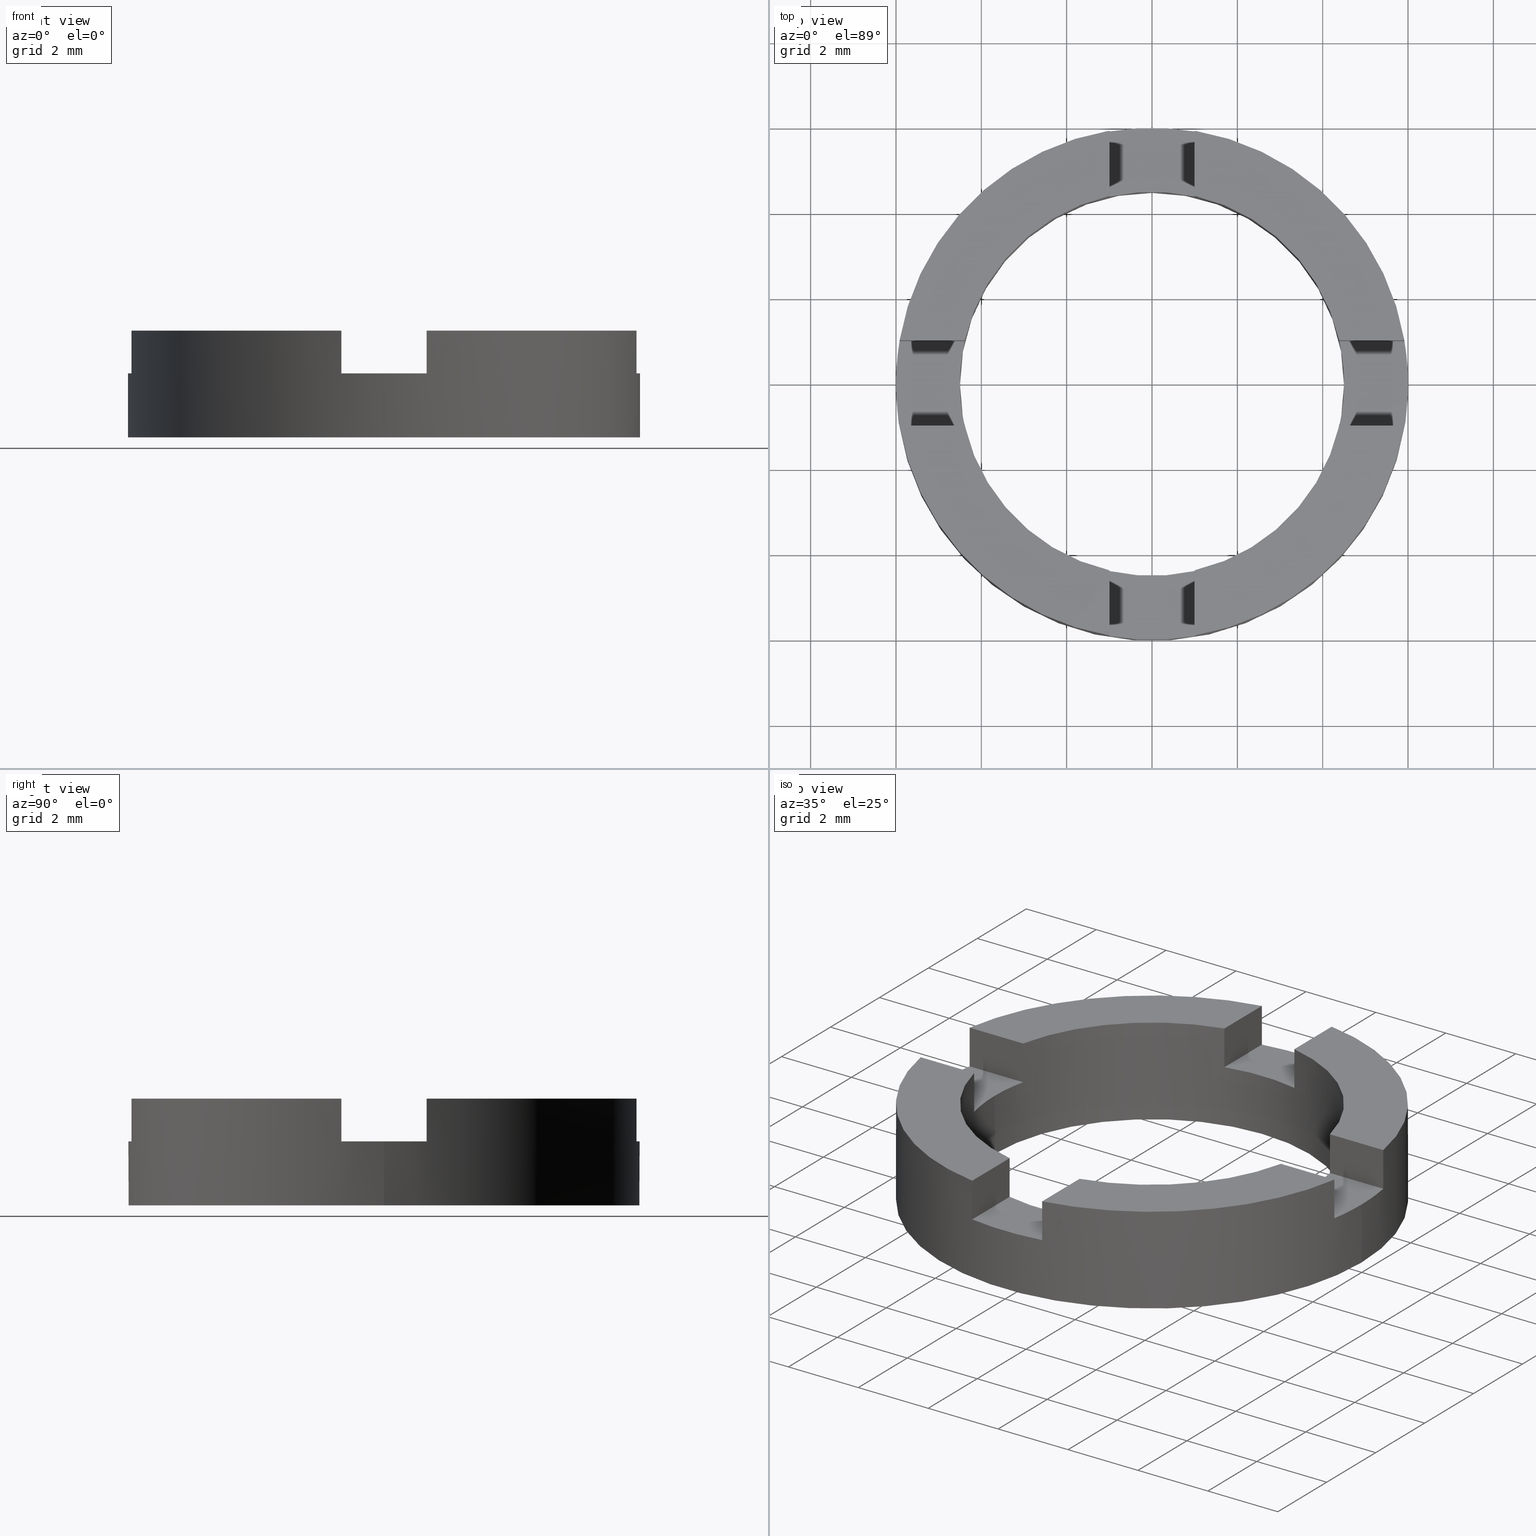
[diagram: canonical four-view strip — front | top / right | iso, engineering-drawing reading convention]
A machine part, canonical four-view strip (front | top / right | iso — engineering-drawing reading convention). The complete STEP part file that produces these views, byte-faithful:
ISO-10303-21;
HEADER;
FILE_DESCRIPTION (( 'STEP AP203' ),
    '1' );
FILE_NAME ('514030.step',
    '2024-12-26T02:30:51',
    ( 'MSI' ),
    ( '' ),
    'SwSTEP 2.0',
    'SolidWorks 2020',
    '' );
FILE_SCHEMA (( 'CONFIG_CONTROL_DESIGN' ));
ENDSEC;

DATA;
#1 = SECURITY_CLASSIFICATION_LEVEL ( 'unclassified' ) ;
#2 = LINE ( 'NONE', #461, #542 ) ;
#3 = ORIENTED_EDGE ( 'NONE', *, *, #92, .F. ) ;
#4 = LINE ( 'NONE', #417, #275 ) ;
#5 = VERTEX_POINT ( 'NONE', #466 ) ;
#6 = DATE_AND_TIME ( #501, #239 ) ;
#7 = CARTESIAN_POINT ( 'NONE',  ( -4.500000000000000000, 0.000000000000000000, 1.500000000000000000 ) ) ;
#8 = VECTOR ( 'NONE', #455, 1000.000000000000000 ) ;
#9 = ORIENTED_EDGE ( 'NONE', *, *, #32, .T. ) ;
#10 = FACE_OUTER_BOUND ( 'NONE', #345, .T. ) ;
#11 = ORIENTED_EDGE ( 'NONE', *, *, #303, .T. ) ;
#12 = LOCAL_TIME ( 10, 30, 51.00000000000000000, #759 ) ;
#13 = DIRECTION ( 'NONE',  ( 0.000000000000000000, -0.000000000000000000, -1.000000000000000000 ) ) ;
#14 = APPLICATION_PROTOCOL_DEFINITION ( 'international standard', 'config_control_design', 1994, #574 ) ;
#15 = ORIENTED_EDGE ( 'NONE', *, *, #90, .T. ) ;
#16 = DIRECTION ( 'NONE',  ( 0.000000000000000000, 0.000000000000000000, 1.000000000000000000 ) ) ;
#17 = ORIENTED_EDGE ( 'NONE', *, *, #90, .F. ) ;
#18 = EDGE_CURVE ( 'NONE', #371, #618, #764, .T. ) ;
#19 = CARTESIAN_POINT ( 'NONE',  ( -5.916079783099620570, -0.9999999999999790168, 2.500000000000000000 ) ) ;
#20 = ORIENTED_EDGE ( 'NONE', *, *, #330, .F. ) ;
#21 = EDGE_LOOP ( 'NONE', ( #267, #287, #376, #15 ) ) ;
#22 = DIRECTION ( 'NONE',  ( 0.000000000000000000, 1.000000000000000000, -0.000000000000000000 ) ) ;
#23 = ORIENTED_EDGE ( 'NONE', *, *, #400, .T. ) ;
#24 = DIRECTION ( 'NONE',  ( 0.000000000000000000, 0.000000000000000000, -1.000000000000000000 ) ) ;
#25 = ADVANCED_FACE ( 'NONE', ( #782 ), #228, .T. ) ;
#26 = ORIENTED_EDGE ( 'NONE', *, *, #464, .T. ) ;
#27 = CARTESIAN_POINT ( 'NONE',  ( 0.000000000000000000, 0.000000000000000000, 1.500000000000000000 ) ) ;
#28 = ORIENTED_EDGE ( 'NONE', *, *, #112, .F. ) ;
#29 = ORIENTED_EDGE ( 'NONE', *, *, #447, .T. ) ;
#30 = AXIS2_PLACEMENT_3D ( 'NONE', #432, #493, #411 ) ;
#31 = ORIENTED_EDGE ( 'NONE', *, *, #563, .F. ) ;
#32 = EDGE_CURVE ( 'NONE', #618, #647, #751, .T. ) ;
#33 = ORIENTED_EDGE ( 'NONE', *, *, #458, .F. ) ;
#34 = DIRECTION ( 'NONE',  ( 0.000000000000000000, 0.000000000000000000, 1.000000000000000000 ) ) ;
#35 = ORIENTED_EDGE ( 'NONE', *, *, #781, .F. ) ;
#36 = EDGE_LOOP ( 'NONE', ( #118, #35, #663, #9 ) ) ;
#37 = ORIENTED_EDGE ( 'NONE', *, *, #680, .T. ) ;
#38 = EDGE_LOOP ( 'NONE', ( #646, #582, #611, #334, #564, #67 ) ) ;
#39 = DIRECTION ( 'NONE',  ( 0.000000000000000000, 1.000000000000000000, -0.000000000000000000 ) ) ;
#40 = CARTESIAN_POINT ( 'NONE',  ( 1.000000000000001332, -5.916079783099617018, 2.500000000000000000 ) ) ;
#41 =( GEOMETRIC_REPRESENTATION_CONTEXT ( 3 ) GLOBAL_UNCERTAINTY_ASSIGNED_CONTEXT ( ( #159 ) ) GLOBAL_UNIT_ASSIGNED_CONTEXT ( ( #172, #48, #367 ) ) REPRESENTATION_CONTEXT ( 'NONE', 'WORKASPACE' ) );
#42 = VERTEX_POINT ( 'NONE', #538 ) ;
#43 = VERTEX_POINT ( 'NONE', #605 ) ;
#44 = EDGE_LOOP ( 'NONE', ( #274, #530, #230, #569 ) ) ;
#45 = EDGE_LOOP ( 'NONE', ( #117, #528, #407, #783, #26, #160 ) ) ;
#46 = CARTESIAN_POINT ( 'NONE',  ( -0.9999999999999986677, -4.387482193696060406, 1.500000000000000000 ) ) ;
#47 = DIRECTION ( 'NONE',  ( -0.000000000000000000, -0.000000000000000000, 1.000000000000000000 ) ) ;
#48 =( NAMED_UNIT ( * ) PLANE_ANGLE_UNIT ( ) SI_UNIT ( $, .RADIAN. ) );
#49 = AXIS2_PLACEMENT_3D ( 'NONE', #697, #157, #472 ) ;
#50 = EDGE_CURVE ( 'NONE', #739, #664, #219, .T. ) ;
#51 = CARTESIAN_POINT ( 'NONE',  ( 0.000000000000000000, 0.000000000000000000, 2.500000000000000000 ) ) ;
#52 = EDGE_CURVE ( 'NONE', #412, #89, #224, .T. ) ;
#53 = DIRECTION ( 'NONE',  ( 0.000000000000000000, 1.000000000000000000, -0.000000000000000000 ) ) ;
#54 = DIRECTION ( 'NONE',  ( 1.000000000000000000, -3.722427458866898820E-15, 0.000000000000000000 ) ) ;
#55 = DIRECTION ( 'NONE',  ( -3.722427458866898820E-15, -1.000000000000000000, 0.000000000000000000 ) ) ;
#56 = PLANE ( 'NONE',  #265 ) ;
#57 = EDGE_CURVE ( 'NONE', #355, #654, #502, .T. ) ;
#58 = CARTESIAN_POINT ( 'NONE',  ( 1.000000000000001332, 0.000000000000000000, 2.500000000000000000 ) ) ;
#59 = AXIS2_PLACEMENT_3D ( 'NONE', #426, #352, #681 ) ;
#60 = ADVANCED_FACE ( 'NONE', ( #532 ), #512, .F. ) ;
#61 = VECTOR ( 'NONE', #212, 1000.000000000000000 ) ;
#62 = FACE_OUTER_BOUND ( 'NONE', #21, .T. ) ;
#63 = LINE ( 'NONE', #534, #644 ) ;
#64 = APPROVAL_STATUS ( 'not_yet_approved' ) ;
#65 = VERTEX_POINT ( 'NONE', #469 ) ;
#66 = VECTOR ( 'NONE', #418, 1000.000000000000000 ) ;
#67 = ORIENTED_EDGE ( 'NONE', *, *, #454, .T. ) ;
#68 = AXIS2_PLACEMENT_3D ( 'NONE', #541, #199, #619 ) ;
#69 = CARTESIAN_POINT ( 'NONE',  ( 0.000000000000000000, 0.000000000000000000, 1.500000000000000000 ) ) ;
#70 = CIRCLE ( 'NONE', #244, 6.000000000000000888 ) ;
#71 = ORIENTED_EDGE ( 'NONE', *, *, #446, .F. ) ;
#72 = LINE ( 'NONE', #424, #365 ) ;
#73 = ORIENTED_EDGE ( 'NONE', *, *, #196, .F. ) ;
#74 = DATE_TIME_ROLE ( 'classification_date' ) ;
#75 = FACE_OUTER_BOUND ( 'NONE', #44, .T. ) ;
#76 = VERTEX_POINT ( 'NONE', #551 ) ;
#77 = CIRCLE ( 'NONE', #474, 6.000000000000000888 ) ;
#78 = ORIENTED_EDGE ( 'NONE', *, *, #272, .T. ) ;
#79 = PLANE ( 'NONE',  #195 ) ;
#80 = FACE_OUTER_BOUND ( 'NONE', #306, .T. ) ;
#81 = ORIENTED_EDGE ( 'NONE', *, *, #680, .F. ) ;
#82 = LINE ( 'NONE', #161, #648 ) ;
#83 = ORIENTED_EDGE ( 'NONE', *, *, #229, .T. ) ;
#84 = VECTOR ( 'NONE', #294, 1000.000000000000000 ) ;
#85 = ORIENTED_EDGE ( 'NONE', *, *, #112, .T. ) ;
#86 = DIRECTION ( 'NONE',  ( 1.000000000000000000, 0.000000000000000000, 0.000000000000000000 ) ) ;
#87 = LINE ( 'NONE', #609, #375 ) ;
#88 = AXIS2_PLACEMENT_3D ( 'NONE', #750, #729, #24 ) ;
#89 = VERTEX_POINT ( 'NONE', #599 ) ;
#90 = EDGE_CURVE ( 'NONE', #256, #398, #766, .T. ) ;
#91 = FACE_OUTER_BOUND ( 'NONE', #668, .T. ) ;
#92 = EDGE_CURVE ( 'NONE', #497, #537, #763, .T. ) ;
#93 = ORIENTED_EDGE ( 'NONE', *, *, #723, .T. ) ;
#94 = CIRCLE ( 'NONE', #482, 6.000000000000000888 ) ;
#95 = CARTESIAN_POINT ( 'NONE',  ( 0.000000000000000000, 0.000000000000000000, 1.500000000000000000 ) ) ;
#96 = ORIENTED_EDGE ( 'NONE', *, *, #196, .T. ) ;
#97 = FACE_OUTER_BOUND ( 'NONE', #635, .T. ) ;
#98 = ORIENTED_EDGE ( 'NONE', *, *, #720, .F. ) ;
#99 = DIRECTION ( 'NONE',  ( -0.000000000000000000, 0.000000000000000000, 1.000000000000000000 ) ) ;
#100 = LINE ( 'NONE', #718, #84 ) ;
#101 = ORIENTED_EDGE ( 'NONE', *, *, #180, .F. ) ;
#102 = DIRECTION ( 'NONE',  ( 1.000000000000000000, 0.000000000000000000, 0.000000000000000000 ) ) ;
#103 = DIRECTION ( 'NONE',  ( -0.000000000000000000, 0.000000000000000000, 1.000000000000000000 ) ) ;
#104 = EDGE_LOOP ( 'NONE', ( #78, #284, #580, #616 ) ) ;
#105 = CIRCLE ( 'NONE', #142, 4.500000000000000000 ) ;
#106 = VERTEX_POINT ( 'NONE', #151 ) ;
#107 = PRODUCT_RELATED_PRODUCT_CATEGORY ( 'detail', '', ( #586 ) ) ;
#108 = FACE_OUTER_BOUND ( 'NONE', #351, .T. ) ;
#109 = ORIENTED_EDGE ( 'NONE', *, *, #146, .F. ) ;
#110 = EDGE_CURVE ( 'NONE', #65, #76, #240, .T. ) ;
#111 = ORGANIZATION ( 'δָ��', 'δָ��', '' ) ;
#112 = EDGE_CURVE ( 'NONE', #124, #647, #500, .T. ) ;
#113 = ORIENTED_EDGE ( 'NONE', *, *, #429, .F. ) ;
#114 = DIRECTION ( 'NONE',  ( -3.758567531283081775E-15, -1.000000000000000000, 0.000000000000000000 ) ) ;
#115 = CARTESIAN_POINT ( 'NONE',  ( 1.000000000000001332, 5.916079783099617018, 2.500000000000000000 ) ) ;
#116 = APPROVAL_PERSON_ORGANIZATION ( #381, #687, #176 ) ;
#117 = ORIENTED_EDGE ( 'NONE', *, *, #508, .F. ) ;
#118 = ORIENTED_EDGE ( 'NONE', *, *, #175, .F. ) ;
#119 = ORIENTED_EDGE ( 'NONE', *, *, #428, .T. ) ;
#120 = EDGE_LOOP ( 'NONE', ( #98, #305, #312, #630, #3, #261, #85, #290, #553, #202, #96, #109 ) ) ;
#121 = CARTESIAN_POINT ( 'NONE',  ( 4.500000000000000000, 5.510910596163088569E-16, 1.500000000000000000 ) ) ;
#122 = CC_DESIGN_PERSON_AND_ORGANIZATION_ASSIGNMENT ( #765, #179, ( #743 ) ) ;
#123 = ORIENTED_EDGE ( 'NONE', *, *, #110, .T. ) ;
#124 = VERTEX_POINT ( 'NONE', #659 ) ;
#125 = CARTESIAN_POINT ( 'NONE',  ( 0.000000000000000000, 0.000000000000000000, 2.500000000000000000 ) ) ;
#126 = ORIENTED_EDGE ( 'NONE', *, *, #682, .T. ) ;
#127 = CARTESIAN_POINT ( 'NONE',  ( 0.000000000000000000, 0.000000000000000000, 2.500000000000000000 ) ) ;
#128 = ORIENTED_EDGE ( 'NONE', *, *, #590, .F. ) ;
#129 = CARTESIAN_POINT ( 'NONE',  ( 0.000000000000000000, 0.000000000000000000, 2.500000000000000000 ) ) ;
#130 = DIRECTION ( 'NONE',  ( 0.000000000000000000, 0.000000000000000000, 1.000000000000000000 ) ) ;
#131 = DIRECTION ( 'NONE',  ( 1.000000000000000000, 0.000000000000000000, 0.000000000000000000 ) ) ;
#132 = DIRECTION ( 'NONE',  ( -0.000000000000000000, -0.000000000000000000, -1.000000000000000000 ) ) ;
#133 = CARTESIAN_POINT ( 'NONE',  ( 1.000000000000001332, 5.916079783099617018, 1.500000000000000000 ) ) ;
#134 = EDGE_CURVE ( 'NONE', #43, #654, #771, .T. ) ;
#135 = CARTESIAN_POINT ( 'NONE',  ( -0.9999999999999986677, -4.387482193696060406, 1.500000000000000000 ) ) ;
#136 = DIRECTION ( 'NONE',  ( 0.000000000000000000, -0.000000000000000000, -1.000000000000000000 ) ) ;
#137 = EDGE_LOOP ( 'NONE', ( #661, #391 ) ) ;
#138 = ORIENTED_EDGE ( 'NONE', *, *, #329, .F. ) ;
#139 = ORIENTED_EDGE ( 'NONE', *, *, #690, .F. ) ;
#140 = APPROVAL ( #64, 'δָ��' ) ;
#141 = PLANE ( 'NONE',  #490 ) ;
#142 = AXIS2_PLACEMENT_3D ( 'NONE', #554, #686, #754 ) ;
#143 = ORIENTED_EDGE ( 'NONE', *, *, #346, .F. ) ;
#144 = EDGE_CURVE ( 'NONE', #742, #256, #758, .T. ) ;
#145 = AXIS2_PLACEMENT_3D ( 'NONE', #125, #535, #291 ) ;
#146 = EDGE_CURVE ( 'NONE', #523, #739, #777, .T. ) ;
#147 = APPROVAL_ROLE ( '' ) ;
#148 = EDGE_CURVE ( 'NONE', #65, #651, #494, .T. ) ;
#149 = ADVANCED_FACE ( 'NONE', ( #767 ), #445, .T. ) ;
#150 = PERSON_AND_ORGANIZATION_ROLE ( 'design_owner' ) ;
#151 = CARTESIAN_POINT ( 'NONE',  ( 5.916079783099613465, -1.000000000000023315, 1.500000000000000000 ) ) ;
#152 = AXIS2_PLACEMENT_3D ( 'NONE', #684, #55, #674 ) ;
#153 = EDGE_CURVE ( 'NONE', #388, #540, #752, .T. ) ;
#154 = CARTESIAN_POINT ( 'NONE',  ( 0.000000000000000000, 0.000000000000000000, 1.500000000000000000 ) ) ;
#155 = CARTESIAN_POINT ( 'NONE',  ( 0.000000000000000000, 0.000000000000000000, 1.500000000000000000 ) ) ;
#156 = EDGE_CURVE ( 'NONE', #299, #675, #505, .T. ) ;
#157 = DIRECTION ( 'NONE',  ( -3.758567531283081775E-15, -1.000000000000000000, 0.000000000000000000 ) ) ;
#158 = CARTESIAN_POINT ( 'NONE',  ( 5.916079783099613465, -1.000000000000023315, 1.500000000000000000 ) ) ;
#159 = UNCERTAINTY_MEASURE_WITH_UNIT (LENGTH_MEASURE( 1.000000000000000082E-05 ), #172, 'distance_accuracy_value', 'NONE');
#160 = ORIENTED_EDGE ( 'NONE', *, *, #548, .T. ) ;
#161 = CARTESIAN_POINT ( 'NONE',  ( -4.387482193696056854, 1.000000000000015321, 1.500000000000000000 ) ) ;
#162 = DIRECTION ( 'NONE',  ( -0.000000000000000000, -0.000000000000000000, -1.000000000000000000 ) ) ;
#163 = DIRECTION ( 'NONE',  ( 1.000000000000000000, 0.000000000000000000, -0.000000000000000000 ) ) ;
#164 = DIRECTION ( 'NONE',  ( 0.000000000000000000, 0.000000000000000000, -1.000000000000000000 ) ) ;
#165 = CARTESIAN_POINT ( 'NONE',  ( 3.758567531283077831E-15, 0.9999999999999988898, 2.500000000000000000 ) ) ;
#166 = CARTESIAN_POINT ( 'NONE',  ( -4.387482193696056854, 1.000000000000015321, 2.500000000000000000 ) ) ;
#167 = DIRECTION ( 'NONE',  ( 0.000000000000000000, 0.000000000000000000, 1.000000000000000000 ) ) ;
#168 = CARTESIAN_POINT ( 'NONE',  ( -3.722427458866902764E-15, -1.000000000000001110, 2.500000000000000000 ) ) ;
#169 = DIRECTION ( 'NONE',  ( 1.000000000000000000, 0.000000000000000000, 0.000000000000000000 ) ) ;
#170 = CARTESIAN_POINT ( 'NONE',  ( 0.000000000000000000, 0.000000000000000000, 2.500000000000000000 ) ) ;
#171 = CARTESIAN_POINT ( 'NONE',  ( 4.387482193696056854, -1.000000000000017319, 2.500000000000000000 ) ) ;
#172 =( LENGTH_UNIT ( ) NAMED_UNIT ( * ) SI_UNIT ( .MILLI., .METRE. ) );
#173 = AXIS2_PLACEMENT_3D ( 'NONE', #587, #114, #285 ) ;
#174 = EDGE_CURVE ( 'NONE', #778, #557, #515, .T. ) ;
#175 = EDGE_CURVE ( 'NONE', #560, #647, #761, .T. ) ;
#176 = APPROVAL_ROLE ( '' ) ;
#177 = DIRECTION ( 'NONE',  ( 0.000000000000000000, -0.000000000000000000, -1.000000000000000000 ) ) ;
#178 = PLANE ( 'NONE',  #692 ) ;
#179 = PERSON_AND_ORGANIZATION_ROLE ( 'creator' ) ;
#180 = EDGE_CURVE ( 'NONE', #568, #637, #522, .T. ) ;
#181 = CARTESIAN_POINT ( 'NONE',  ( 0.000000000000000000, 0.000000000000000000, 2.500000000000000000 ) ) ;
#182 = DIRECTION ( 'NONE',  ( -0.000000000000000000, -0.000000000000000000, 1.000000000000000000 ) ) ;
#183 = CARTESIAN_POINT ( 'NONE',  ( 0.000000000000000000, 0.000000000000000000, 2.500000000000000000 ) ) ;
#184 = DIRECTION ( 'NONE',  ( 1.000000000000000000, 0.000000000000000000, 0.000000000000000000 ) ) ;
#185 = AXIS2_PLACEMENT_3D ( 'NONE', #189, #740, #102 ) ;
#186 = AXIS2_PLACEMENT_3D ( 'NONE', #732, #99, #86 ) ;
#187 = CARTESIAN_POINT ( 'NONE',  ( 0.000000000000000000, 0.000000000000000000, 2.500000000000000000 ) ) ;
#188 = CARTESIAN_POINT ( 'NONE',  ( 0.000000000000000000, 0.000000000000000000, 1.500000000000000000 ) ) ;
#189 = CARTESIAN_POINT ( 'NONE',  ( 0.000000000000000000, 0.000000000000000000, 0.000000000000000000 ) ) ;
#190 = DIRECTION ( 'NONE',  ( 0.000000000000000000, 0.000000000000000000, -1.000000000000000000 ) ) ;
#191 = CARTESIAN_POINT ( 'NONE',  ( 1.000000000000001332, 0.000000000000000000, 1.500000000000000000 ) ) ;
#192 = CARTESIAN_POINT ( 'NONE',  ( -0.9999999999999986677, 0.000000000000000000, 2.500000000000000000 ) ) ;
#193 = DIRECTION ( 'NONE',  ( -0.000000000000000000, -0.000000000000000000, 1.000000000000000000 ) ) ;
#194 = CARTESIAN_POINT ( 'NONE',  ( -0.9999999999999986677, 4.387482193696060406, 1.500000000000000000 ) ) ;
#195 = AXIS2_PLACEMENT_3D ( 'NONE', #724, #34, #499 ) ;
#196 = EDGE_CURVE ( 'NONE', #637, #739, #507, .T. ) ;
#197 = CARTESIAN_POINT ( 'NONE',  ( 1.000000000000001332, 4.387482193696059518, 1.500000000000000000 ) ) ;
#198 = EDGE_CURVE ( 'NONE', #497, #124, #779, .T. ) ;
#199 = DIRECTION ( 'NONE',  ( 0.000000000000000000, 0.000000000000000000, 1.000000000000000000 ) ) ;
#200 = DIRECTION ( 'NONE',  ( -0.000000000000000000, -0.000000000000000000, 1.000000000000000000 ) ) ;
#201 = CARTESIAN_POINT ( 'NONE',  ( 0.000000000000000000, 0.000000000000000000, 2.500000000000000000 ) ) ;
#202 = ORIENTED_EDGE ( 'NONE', *, *, #180, .T. ) ;
#203 = DIRECTION ( 'NONE',  ( 1.000000000000000000, -3.722427458866898820E-15, 0.000000000000000000 ) ) ;
#204 = ORIENTED_EDGE ( 'NONE', *, *, #576, .T. ) ;
#205 = DIRECTION ( 'NONE',  ( -1.000000000000000000, 0.000000000000000000, 0.000000000000000000 ) ) ;
#206 = EDGE_CURVE ( 'NONE', #651, #282, #770, .T. ) ;
#207 = ORIENTED_EDGE ( 'NONE', *, *, #50, .F. ) ;
#208 = ORIENTED_EDGE ( 'NONE', *, *, #548, .F. ) ;
#209 = CARTESIAN_POINT ( 'NONE',  ( -0.9999999999999986677, 4.387482193696060406, 2.500000000000000000 ) ) ;
#210 = DIRECTION ( 'NONE',  ( 1.000000000000000000, 0.000000000000000000, 0.000000000000000000 ) ) ;
#211 = ADVANCED_FACE ( 'NONE', ( #488 ), #457, .F. ) ;
#212 = DIRECTION ( 'NONE',  ( -0.000000000000000000, -0.000000000000000000, 1.000000000000000000 ) ) ;
#213 = AXIS2_PLACEMENT_3D ( 'NONE', #201, #452, #413 ) ;
#214 = VECTOR ( 'NONE', #521, 1000.000000000000000 ) ;
#215 = FACE_OUTER_BOUND ( 'NONE', #608, .T. ) ;
#216 = DIRECTION ( 'NONE',  ( 0.000000000000000000, 0.000000000000000000, 1.000000000000000000 ) ) ;
#217 = LINE ( 'NONE', #443, #252 ) ;
#218 = ADVANCED_FACE ( 'NONE', ( #491 ), #460, .T. ) ;
#219 = LINE ( 'NONE', #168, #755 ) ;
#220 = COORDINATED_UNIVERSAL_TIME_OFFSET ( 8, 0, .AHEAD. ) ;
#221 = VECTOR ( 'NONE', #414, 1000.000000000000000 ) ;
#222 = CALENDAR_DATE ( 2024, 26, 12 ) ;
#223 = PRODUCT_DEFINITION_FORMATION_WITH_SPECIFIED_SOURCE ( '�κ�', '', #586, .NOT_KNOWN. ) ;
#224 = LINE ( 'NONE', #384, #246 ) ;
#225 = PERSON_AND_ORGANIZATION ( #657, #111 ) ;
#226 = APPROVAL_ROLE ( '' ) ;
#227 = AXIS2_PLACEMENT_3D ( 'NONE', #486, #332, #250 ) ;
#228 = CYLINDRICAL_SURFACE ( 'NONE', #572, 6.000000000000000888 ) ;
#229 = EDGE_CURVE ( 'NONE', #5, #540, #520, .T. ) ;
#230 = ORIENTED_EDGE ( 'NONE', *, *, #590, .T. ) ;
#231 = APPROVAL_DATE_TIME ( #235, #687 ) ;
#232 = VECTOR ( 'NONE', #440, 1000.000000000000000 ) ;
#233 = APPROVAL_DATE_TIME ( #6, #638 ) ;
#234 = DIRECTION ( 'NONE',  ( -0.000000000000000000, 0.000000000000000000, 1.000000000000000000 ) ) ;
#235 = DATE_AND_TIME ( #547, #531 ) ;
#236 = VECTOR ( 'NONE', #685, 1000.000000000000000 ) ;
#237 = VECTOR ( 'NONE', #361, 1000.000000000000000 ) ;
#238 = CARTESIAN_POINT ( 'NONE',  ( 4.387482193696056854, -1.000000000000017319, 1.500000000000000000 ) ) ;
#239 = LOCAL_TIME ( 10, 30, 51.00000000000000000, #776 ) ;
#240 = LINE ( 'NONE', #578, #243 ) ;
#241 = PLANE ( 'NONE',  #453 ) ;
#242 = AXIS2_PLACEMENT_3D ( 'NONE', #601, #216, #462 ) ;
#243 = VECTOR ( 'NONE', #730, 1000.000000000000000 ) ;
#244 = AXIS2_PLACEMENT_3D ( 'NONE', #339, #595, #277 ) ;
#245 = DIRECTION ( 'NONE',  ( -0.000000000000000000, -0.000000000000000000, 1.000000000000000000 ) ) ;
#246 = VECTOR ( 'NONE', #132, 1000.000000000000000 ) ;
#247 = EDGE_CURVE ( 'NONE', #42, #742, #217, .T. ) ;
#248 = SHAPE_DEFINITION_REPRESENTATION ( #727, #403 ) ;
#249 = VECTOR ( 'NONE', #53, 1000.000000000000000 ) ;
#250 = DIRECTION ( 'NONE',  ( 1.000000000000000000, 0.000000000000000000, 0.000000000000000000 ) ) ;
#251 = COORDINATED_UNIVERSAL_TIME_OFFSET ( 8, 0, .AHEAD. ) ;
#252 = VECTOR ( 'NONE', #245, 1000.000000000000000 ) ;
#253 = ORIENTED_EDGE ( 'NONE', *, *, #563, .T. ) ;
#254 = DIRECTION ( 'NONE',  ( 0.000000000000000000, 0.000000000000000000, 1.000000000000000000 ) ) ;
#255 = LINE ( 'NONE', #489, #527 ) ;
#256 = VERTEX_POINT ( 'NONE', #324 ) ;
#257 = CALENDAR_DATE ( 2024, 26, 12 ) ;
#258 = DIRECTION ( 'NONE',  ( -0.000000000000000000, -0.000000000000000000, -1.000000000000000000 ) ) ;
#259 = FACE_OUTER_BOUND ( 'NONE', #555, .T. ) ;
#260 = ORIENTED_EDGE ( 'NONE', *, *, #52, .T. ) ;
#261 = ORIENTED_EDGE ( 'NONE', *, *, #198, .T. ) ;
#262 = ORIENTED_EDGE ( 'NONE', *, *, #737, .F. ) ;
#263 = CARTESIAN_POINT ( 'NONE',  ( 0.000000000000000000, 0.000000000000000000, 2.500000000000000000 ) ) ;
#264 = PERSON_AND_ORGANIZATION ( #657, #111 ) ;
#265 = AXIS2_PLACEMENT_3D ( 'NONE', #377, #470, #631 ) ;
#266 = VECTOR ( 'NONE', #39, 1000.000000000000000 ) ;
#267 = ORIENTED_EDGE ( 'NONE', *, *, #689, .F. ) ;
#268 = APPROVAL_DATE_TIME ( #772, #140 ) ;
#269 = DIRECTION ( 'NONE',  ( 1.000000000000000000, 0.000000000000000000, 0.000000000000000000 ) ) ;
#270 = CYLINDRICAL_SURFACE ( 'NONE', #321, 4.500000000000000000 ) ;
#271 = ORIENTED_EDGE ( 'NONE', *, *, #706, .F. ) ;
#272 = EDGE_CURVE ( 'NONE', #540, #557, #774, .T. ) ;
#273 = VECTOR ( 'NONE', #596, 1000.000000000000000 ) ;
#274 = ORIENTED_EDGE ( 'NONE', *, *, #272, .F. ) ;
#275 = VECTOR ( 'NONE', #670, 1000.000000000000000 ) ;
#276 = CLOSED_SHELL ( 'NONE', ( #60, #25, #623, #485, #700, #442, #316, #326, #552, #218, #688, #478, #471, #404, #149, #437, #211, #579, #449, #468, #762 ) ) ;
#277 = DIRECTION ( 'NONE',  ( 1.000000000000000000, 0.000000000000000000, 0.000000000000000000 ) ) ;
#278 = LINE ( 'NONE', #510, #273 ) ;
#279 = ORIENTED_EDGE ( 'NONE', *, *, #745, .F. ) ;
#280 = PERSON_AND_ORGANIZATION ( #657, #111 ) ;
#281 = CARTESIAN_POINT ( 'NONE',  ( 3.758567531283077831E-15, 0.9999999999999988898, 2.500000000000000000 ) ) ;
#282 = VERTEX_POINT ( 'NONE', #573 ) ;
#283 = ORIENTED_EDGE ( 'NONE', *, *, #702, .F. ) ;
#284 = ORIENTED_EDGE ( 'NONE', *, *, #492, .F. ) ;
#285 = DIRECTION ( 'NONE',  ( 1.000000000000000000, -3.758567531283081775E-15, 0.000000000000000000 ) ) ;
#286 = DIRECTION ( 'NONE',  ( -0.000000000000000000, -0.000000000000000000, -1.000000000000000000 ) ) ;
#287 = ORIENTED_EDGE ( 'NONE', *, *, #421, .T. ) ;
#288 = DIRECTION ( 'NONE',  ( 1.000000000000000000, 0.000000000000000000, 0.000000000000000000 ) ) ;
#289 = ORIENTED_EDGE ( 'NONE', *, *, #314, .T. ) ;
#290 = ORIENTED_EDGE ( 'NONE', *, *, #32, .F. ) ;
#291 = DIRECTION ( 'NONE',  ( 1.000000000000000000, 0.000000000000000000, 0.000000000000000000 ) ) ;
#292 = ORIENTED_EDGE ( 'NONE', *, *, #576, .F. ) ;
#293 = ORIENTED_EDGE ( 'NONE', *, *, #153, .F. ) ;
#294 = DIRECTION ( 'NONE',  ( -0.000000000000000000, -0.000000000000000000, 1.000000000000000000 ) ) ;
#295 = DIRECTION ( 'NONE',  ( 0.000000000000000000, -0.000000000000000000, -1.000000000000000000 ) ) ;
#296 = ORIENTED_EDGE ( 'NONE', *, *, #400, .F. ) ;
#297 = PLANE ( 'NONE',  #622 ) ;
#298 = CC_DESIGN_PERSON_AND_ORGANIZATION_ASSIGNMENT ( #503, #725, ( #223 ) ) ;
#299 = VERTEX_POINT ( 'NONE', #695 ) ;
#300 = CARTESIAN_POINT ( 'NONE',  ( 0.000000000000000000, 0.000000000000000000, 2.500000000000000000 ) ) ;
#301 = ORIENTED_EDGE ( 'NONE', *, *, #428, .F. ) ;
#302 = AXIS2_PLACEMENT_3D ( 'NONE', #378, #295, #483 ) ;
#303 = EDGE_CURVE ( 'NONE', #299, #388, #747, .T. ) ;
#304 = ORIENTED_EDGE ( 'NONE', *, *, #247, .T. ) ;
#305 = ORIENTED_EDGE ( 'NONE', *, *, #57, .T. ) ;
#306 = EDGE_LOOP ( 'NONE', ( #640, #101, #301, #93 ) ) ;
#307 = DIRECTION ( 'NONE',  ( 0.000000000000000000, 1.000000000000000000, -0.000000000000000000 ) ) ;
#308 = DIRECTION ( 'NONE',  ( 1.000000000000000000, -3.722427458866898820E-15, 0.000000000000000000 ) ) ;
#309 = ORIENTED_EDGE ( 'NONE', *, *, #156, .F. ) ;
#310 = ORIENTED_EDGE ( 'NONE', *, *, #421, .F. ) ;
#311 = CARTESIAN_POINT ( 'NONE',  ( 0.000000000000000000, 0.000000000000000000, 1.500000000000000000 ) ) ;
#312 = ORIENTED_EDGE ( 'NONE', *, *, #134, .F. ) ;
#313 = CC_DESIGN_PERSON_AND_ORGANIZATION_ASSIGNMENT ( #225, #693, ( #223 ) ) ;
#314 = EDGE_CURVE ( 'NONE', #299, #42, #255, .T. ) ;
#315 = PLANE ( 'NONE',  #593 ) ;
#316 = ADVANCED_FACE ( 'NONE', ( #259 ), #749, .T. ) ;
#317 = AXIS2_PLACEMENT_3D ( 'NONE', #300, #167, #383 ) ;
#318 = APPLICATION_PROTOCOL_DEFINITION ( 'international standard', 'config_control_design', 1994, #479 ) ;
#319 = DIRECTION ( 'NONE',  ( 1.000000000000000000, 0.000000000000000000, 0.000000000000000000 ) ) ;
#320 = DIRECTION ( 'NONE',  ( -0.000000000000000000, 0.000000000000000000, 1.000000000000000000 ) ) ;
#321 = AXIS2_PLACEMENT_3D ( 'NONE', #187, #258, #728 ) ;
#322 = DIRECTION ( 'NONE',  ( 1.000000000000000000, 0.000000000000000000, 0.000000000000000000 ) ) ;
#323 = CARTESIAN_POINT ( 'NONE',  ( 0.000000000000000000, 0.000000000000000000, 1.500000000000000000 ) ) ;
#324 = CARTESIAN_POINT ( 'NONE',  ( -5.916079783099614353, 1.000000000000021316, 2.500000000000000000 ) ) ;
#325 = DIRECTION ( 'NONE',  ( 0.000000000000000000, -0.000000000000000000, -1.000000000000000000 ) ) ;
#326 = ADVANCED_FACE ( 'NONE', ( #215 ), #270, .F. ) ;
#327 = DIRECTION ( 'NONE',  ( 1.000000000000000000, 0.000000000000000000, -0.000000000000000000 ) ) ;
#328 = FACE_OUTER_BOUND ( 'NONE', #38, .T. ) ;
#329 = EDGE_CURVE ( 'NONE', #567, #5, #539, .T. ) ;
#330 = EDGE_CURVE ( 'NONE', #543, #124, #278, .T. ) ;
#331 = FACE_OUTER_BOUND ( 'NONE', #374, .T. ) ;
#332 = DIRECTION ( 'NONE',  ( -0.000000000000000000, 0.000000000000000000, 1.000000000000000000 ) ) ;
#333 = CIRCLE ( 'NONE', #709, 4.500000000000000000 ) ;
#334 = ORIENTED_EDGE ( 'NONE', *, *, #702, .T. ) ;
#335 = FACE_OUTER_BOUND ( 'NONE', #673, .T. ) ;
#336 = EDGE_LOOP ( 'NONE', ( #565, #571, #283, #628 ) ) ;
#337 = LINE ( 'NONE', #158, #358 ) ;
#338 = EDGE_LOOP ( 'NONE', ( #208, #260, #343, #296, #357, #477, #550, #387, #31, #736, #533, #71 ) ) ;
#339 = CARTESIAN_POINT ( 'NONE',  ( 0.000000000000000000, 0.000000000000000000, 1.500000000000000000 ) ) ;
#340 = CC_DESIGN_APPROVAL ( #687, ( #743 ) ) ;
#341 = FACE_OUTER_BOUND ( 'NONE', #653, .T. ) ;
#342 = PLANE ( 'NONE',  #386 ) ;
#343 = ORIENTED_EDGE ( 'NONE', *, *, #438, .T. ) ;
#344 = VECTOR ( 'NONE', #182, 1000.000000000000000 ) ;
#345 = EDGE_LOOP ( 'NONE', ( #672, #366, #262, #369 ) ) ;
#346 = EDGE_CURVE ( 'NONE', #65, #256, #4, .T. ) ;
#347 = LINE ( 'NONE', #191, #66 ) ;
#348 = ORIENTED_EDGE ( 'NONE', *, *, #723, .F. ) ;
#349 = CARTESIAN_POINT ( 'NONE',  ( -0.9999999999999986677, 0.000000000000000000, 2.500000000000000000 ) ) ;
#350 = CIRCLE ( 'NONE', #30, 6.000000000000000888 ) ;
#351 = EDGE_LOOP ( 'NONE', ( #17, #143, #123, #669 ) ) ;
#352 = DIRECTION ( 'NONE',  ( -3.722427458866898820E-15, -1.000000000000000000, 0.000000000000000000 ) ) ;
#353 = CIRCLE ( 'NONE', #68, 6.000000000000000888 ) ;
#354 = CARTESIAN_POINT ( 'NONE',  ( 0.000000000000000000, 0.000000000000000000, 2.500000000000000000 ) ) ;
#355 = VERTEX_POINT ( 'NONE', #121 ) ;
#356 = LINE ( 'NONE', #436, #629 ) ;
#357 = ORIENTED_EDGE ( 'NONE', *, *, #148, .F. ) ;
#358 = VECTOR ( 'NONE', #517, 1000.000000000000000 ) ;
#359 = ORIENTED_EDGE ( 'NONE', *, *, #781, .T. ) ;
#360 = DIRECTION ( 'NONE',  ( -0.000000000000000000, -0.000000000000000000, 1.000000000000000000 ) ) ;
#361 = DIRECTION ( 'NONE',  ( -0.000000000000000000, -0.000000000000000000, -1.000000000000000000 ) ) ;
#362 = LINE ( 'NONE', #773, #642 ) ;
#363 = ORIENTED_EDGE ( 'NONE', *, *, #329, .T. ) ;
#364 = AXIS2_PLACEMENT_3D ( 'NONE', #584, #254, #327 ) ;
#365 = VECTOR ( 'NONE', #463, 1000.000000000000000 ) ;
#366 = ORIENTED_EDGE ( 'NONE', *, *, #592, .F. ) ;
#367 =( NAMED_UNIT ( * ) SI_UNIT ( $, .STERADIAN. ) SOLID_ANGLE_UNIT ( ) );
#368 = FACE_BOUND ( 'NONE', #137, .T. ) ;
#369 = ORIENTED_EDGE ( 'NONE', *, *, #146, .T. ) ;
#370 = CIRCLE ( 'NONE', #561, 6.000000000000000888 ) ;
#371 = VERTEX_POINT ( 'NONE', #676 ) ;
#372 = DIRECTION ( 'NONE',  ( -0.000000000000000000, 0.000000000000000000, 1.000000000000000000 ) ) ;
#373 = VECTOR ( 'NONE', #451, 1000.000000000000000 ) ;
#374 = EDGE_LOOP ( 'NONE', ( #20, #204, #613, #28 ) ) ;
#375 = VECTOR ( 'NONE', #54, 1000.000000000000000 ) ;
#376 = ORIENTED_EDGE ( 'NONE', *, *, #144, .T. ) ;
#377 = CARTESIAN_POINT ( 'NONE',  ( 1.000000000000001332, 0.000000000000000000, 1.500000000000000000 ) ) ;
#378 = CARTESIAN_POINT ( 'NONE',  ( 0.000000000000000000, 0.000000000000000000, 1.500000000000000000 ) ) ;
#379 = VECTOR ( 'NONE', #744, 1000.000000000000000 ) ;
#380 = ORIENTED_EDGE ( 'NONE', *, *, #690, .T. ) ;
#381 = PERSON_AND_ORGANIZATION ( #657, #111 ) ;
#382 = ORIENTED_EDGE ( 'NONE', *, *, #156, .T. ) ;
#383 = DIRECTION ( 'NONE',  ( 1.000000000000000000, 0.000000000000000000, 0.000000000000000000 ) ) ;
#384 = CARTESIAN_POINT ( 'NONE',  ( 6.000000000000000888, 7.347880794884120722E-16, 2.500000000000000000 ) ) ;
#385 = PERSON_AND_ORGANIZATION ( #657, #111 ) ;
#386 = AXIS2_PLACEMENT_3D ( 'NONE', #354, #671, #707 ) ;
#387 = ORIENTED_EDGE ( 'NONE', *, *, #247, .F. ) ;
#388 = VERTEX_POINT ( 'NONE', #197 ) ;
#389 = CARTESIAN_POINT ( 'NONE',  ( 0.000000000000000000, 0.000000000000000000, 2.500000000000000000 ) ) ;
#390 = ORIENTED_EDGE ( 'NONE', *, *, #508, .T. ) ;
#391 = ORIENTED_EDGE ( 'NONE', *, *, #706, .T. ) ;
#392 = DIRECTION ( 'NONE',  ( 1.000000000000000000, 0.000000000000000000, 0.000000000000000000 ) ) ;
#393 = ORIENTED_EDGE ( 'NONE', *, *, #689, .T. ) ;
#394 = ORIENTED_EDGE ( 'NONE', *, *, #206, .F. ) ;
#395 = CARTESIAN_POINT ( 'NONE',  ( 0.000000000000000000, 0.000000000000000000, 1.500000000000000000 ) ) ;
#396 = VERTEX_POINT ( 'NONE', #133 ) ;
#397 = SECURITY_CLASSIFICATION ( '', '', #1 ) ;
#398 = VERTEX_POINT ( 'NONE', #166 ) ;
#399 = AXIS2_PLACEMENT_3D ( 'NONE', #389, #427, #717 ) ;
#400 = EDGE_CURVE ( 'NONE', #651, #556, #2, .T. ) ;
#401 = CARTESIAN_POINT ( 'NONE',  ( -0.9999999999999986677, 5.916079783099617906, 2.500000000000000000 ) ) ;
#402 = APPROVAL_STATUS ( 'not_yet_approved' ) ;
#403 = ADVANCED_BREP_SHAPE_REPRESENTATION ( '514030', ( #435, #242 ), #41 ) ;
#404 = ADVANCED_FACE ( 'NONE', ( #10 ), #600, .F. ) ;
#405 = CARTESIAN_POINT ( 'NONE',  ( 1.000000000000001332, 4.387482193696059518, 1.500000000000000000 ) ) ;
#406 = CARTESIAN_POINT ( 'NONE',  ( 1.000000000000001332, 4.387482193696059518, 2.500000000000000000 ) ) ;
#407 = ORIENTED_EDGE ( 'NONE', *, *, #720, .T. ) ;
#408 = CARTESIAN_POINT ( 'NONE',  ( 1.000000000000001332, 0.000000000000000000, 2.500000000000000000 ) ) ;
#409 = DESIGN_CONTEXT ( 'detailed design', #479, 'design' ) ;
#410 = ORIENTED_EDGE ( 'NONE', *, *, #446, .T. ) ;
#411 = DIRECTION ( 'NONE',  ( 1.000000000000000000, 0.000000000000000000, 0.000000000000000000 ) ) ;
#412 = VERTEX_POINT ( 'NONE', #710 ) ;
#413 = DIRECTION ( 'NONE',  ( 1.000000000000000000, 0.000000000000000000, 0.000000000000000000 ) ) ;
#414 = DIRECTION ( 'NONE',  ( 1.000000000000000000, -3.758567531283081775E-15, 0.000000000000000000 ) ) ;
#415 = CARTESIAN_POINT ( 'NONE',  ( 3.758567531283077831E-15, 0.9999999999999988898, 1.500000000000000000 ) ) ;
#416 = PLANE ( 'NONE',  #364 ) ;
#417 = CARTESIAN_POINT ( 'NONE',  ( -5.916079783099614353, 1.000000000000021316, 1.500000000000000000 ) ) ;
#418 = DIRECTION ( 'NONE',  ( 0.000000000000000000, 1.000000000000000000, -0.000000000000000000 ) ) ;
#419 = DIRECTION ( 'NONE',  ( -0.000000000000000000, -0.000000000000000000, 1.000000000000000000 ) ) ;
#420 = CARTESIAN_POINT ( 'NONE',  ( -0.9999999999999986677, -4.387482193696060406, 2.500000000000000000 ) ) ;
#421 = EDGE_CURVE ( 'NONE', #675, #742, #549, .T. ) ;
#422 = CARTESIAN_POINT ( 'NONE',  ( -4.387482193696063071, -0.9999999999999847899, 1.500000000000000000 ) ) ;
#423 = DIRECTION ( 'NONE',  ( -0.000000000000000000, -0.000000000000000000, -1.000000000000000000 ) ) ;
#424 = CARTESIAN_POINT ( 'NONE',  ( -4.500000000000000000, 0.000000000000000000, 2.500000000000000000 ) ) ;
#425 = CC_DESIGN_APPROVAL ( #638, ( #223 ) ) ;
#426 = CARTESIAN_POINT ( 'NONE',  ( -3.722427458866902764E-15, -1.000000000000001110, 1.500000000000000000 ) ) ;
#427 = DIRECTION ( 'NONE',  ( 0.000000000000000000, 0.000000000000000000, 1.000000000000000000 ) ) ;
#428 = EDGE_CURVE ( 'NONE', #546, #568, #545, .T. ) ;
#429 = EDGE_CURVE ( 'NONE', #371, #546, #70, .T. ) ;
#430 = CARTESIAN_POINT ( 'NONE',  ( 4.500000000000000000, 5.510910596163088569E-16, 2.500000000000000000 ) ) ;
#431 = DIRECTION ( 'NONE',  ( 0.000000000000000000, 0.000000000000000000, 1.000000000000000000 ) ) ;
#432 = CARTESIAN_POINT ( 'NONE',  ( 0.000000000000000000, 0.000000000000000000, 1.500000000000000000 ) ) ;
#433 = AXIS2_PLACEMENT_3D ( 'NONE', #756, #372, #465 ) ;
#434 = DIRECTION ( 'NONE',  ( 1.000000000000000000, 0.000000000000000000, 0.000000000000000000 ) ) ;
#435 = MANIFOLD_SOLID_BREP ( '�г�-����1', #276 ) ;
#436 = CARTESIAN_POINT ( 'NONE',  ( -3.722427458866902764E-15, -1.000000000000001110, 1.500000000000000000 ) ) ;
#437 = ADVANCED_FACE ( 'NONE', ( #108 ), #705, .T. ) ;
#438 = EDGE_CURVE ( 'NONE', #89, #556, #610, .T. ) ;
#439 = DIRECTION ( 'NONE',  ( 0.000000000000000000, 1.000000000000000000, -0.000000000000000000 ) ) ;
#440 = DIRECTION ( 'NONE',  ( -0.000000000000000000, -0.000000000000000000, 1.000000000000000000 ) ) ;
#441 = CARTESIAN_POINT ( 'NONE',  ( -6.000000000000000888, 0.000000000000000000, 0.000000000000000000 ) ) ;
#442 = ADVANCED_FACE ( 'NONE', ( #335 ), #297, .T. ) ;
#443 = CARTESIAN_POINT ( 'NONE',  ( -0.9999999999999986677, 5.916079783099617906, 1.500000000000000000 ) ) ;
#444 = CC_DESIGN_DATE_AND_TIME_ASSIGNMENT ( #509, #74, ( #397 ) ) ;
#445 = PLANE ( 'NONE',  #227 ) ;
#446 = EDGE_CURVE ( 'NONE', #775, #778, #63, .T. ) ;
#447 = EDGE_CURVE ( 'NONE', #537, #43, #72, .T. ) ;
#448 = DIRECTION ( 'NONE',  ( 1.000000000000000000, 0.000000000000000000, 0.000000000000000000 ) ) ;
#449 = ADVANCED_FACE ( 'NONE', ( #636 ), #678, .T. ) ;
#450 = DIRECTION ( 'NONE',  ( 1.000000000000000000, 0.000000000000000000, 0.000000000000000000 ) ) ;
#451 = DIRECTION ( 'NONE',  ( 1.000000000000000000, -3.758567531283081775E-15, 0.000000000000000000 ) ) ;
#452 = DIRECTION ( 'NONE',  ( 0.000000000000000000, 0.000000000000000000, 1.000000000000000000 ) ) ;
#453 = AXIS2_PLACEMENT_3D ( 'NONE', #323, #694, #288 ) ;
#454 = EDGE_CURVE ( 'NONE', #537, #76, #333, .T. ) ;
#455 = DIRECTION ( 'NONE',  ( 0.000000000000000000, 1.000000000000000000, -0.000000000000000000 ) ) ;
#456 = CARTESIAN_POINT ( 'NONE',  ( 4.500000000000000000, 5.510910596163088569E-16, 0.000000000000000000 ) ) ;
#457 = PLANE ( 'NONE',  #152 ) ;
#458 = EDGE_CURVE ( 'NONE', #567, #355, #614, .T. ) ;
#459 = CARTESIAN_POINT ( 'NONE',  ( -6.000000000000000888, 0.000000000000000000, 1.500000000000000000 ) ) ;
#460 = PLANE ( 'NONE',  #735 ) ;
#461 = CARTESIAN_POINT ( 'NONE',  ( -6.000000000000000888, 0.000000000000000000, 2.500000000000000000 ) ) ;
#462 = DIRECTION ( 'NONE',  ( 1.000000000000000000, 0.000000000000000000, 0.000000000000000000 ) ) ;
#463 = DIRECTION ( 'NONE',  ( -0.000000000000000000, -0.000000000000000000, -1.000000000000000000 ) ) ;
#464 = EDGE_CURVE ( 'NONE', #106, #412, #370, .T. ) ;
#465 = DIRECTION ( 'NONE',  ( 1.000000000000000000, 0.000000000000000000, 0.000000000000000000 ) ) ;
#466 = CARTESIAN_POINT ( 'NONE',  ( 4.387482193696063959, 0.9999999999999824585, 2.500000000000000000 ) ) ;
#467 = DIRECTION ( 'NONE',  ( 0.000000000000000000, 0.000000000000000000, 1.000000000000000000 ) ) ;
#468 = ADVANCED_FACE ( 'NONE', ( #612 ), #581, .F. ) ;
#469 = CARTESIAN_POINT ( 'NONE',  ( -5.916079783099614353, 1.000000000000021316, 1.500000000000000000 ) ) ;
#470 = DIRECTION ( 'NONE',  ( 1.000000000000000000, 0.000000000000000000, 0.000000000000000000 ) ) ;
#471 = ADVANCED_FACE ( 'NONE', ( #97 ), #666, .T. ) ;
#472 = DIRECTION ( 'NONE',  ( 1.000000000000000000, -3.758567531283081775E-15, 0.000000000000000000 ) ) ;
#473 = DIRECTION ( 'NONE',  ( -0.000000000000000000, 0.000000000000000000, 1.000000000000000000 ) ) ;
#474 = AXIS2_PLACEMENT_3D ( 'NONE', #69, #103, #269 ) ;
#475 = DIRECTION ( 'NONE',  ( 0.000000000000000000, -0.000000000000000000, -1.000000000000000000 ) ) ;
#476 = VERTEX_POINT ( 'NONE', #40 ) ;
#477 = ORIENTED_EDGE ( 'NONE', *, *, #346, .T. ) ;
#478 = ADVANCED_FACE ( 'NONE', ( #341 ), #178, .T. ) ;
#479 = APPLICATION_CONTEXT ( 'configuration controlled 3d designs of mechanical parts and assemblies' ) ;
#480 = CC_DESIGN_SECURITY_CLASSIFICATION ( #397, ( #223 ) ) ;
#481 = CARTESIAN_POINT ( 'NONE',  ( 0.000000000000000000, 0.000000000000000000, 0.000000000000000000 ) ) ;
#482 = AXIS2_PLACEMENT_3D ( 'NONE', #170, #667, #570 ) ;
#483 = DIRECTION ( 'NONE',  ( 1.000000000000000000, -1.421085471520200372E-14, 0.000000000000000000 ) ) ;
#484 = DIRECTION ( 'NONE',  ( -1.000000000000000000, 0.000000000000000000, 0.000000000000000000 ) ) ;
#485 = ADVANCED_FACE ( 'NONE', ( #75 ), #416, .T. ) ;
#486 = CARTESIAN_POINT ( 'NONE',  ( 0.000000000000000000, 0.000000000000000000, 1.500000000000000000 ) ) ;
#487 = CARTESIAN_POINT ( 'NONE',  ( 1.000000000000001332, -5.916079783099617018, 1.500000000000000000 ) ) ;
#488 = FACE_OUTER_BOUND ( 'NONE', #336, .T. ) ;
#489 = CARTESIAN_POINT ( 'NONE',  ( -0.9999999999999986677, 0.000000000000000000, 1.500000000000000000 ) ) ;
#490 = AXIS2_PLACEMENT_3D ( 'NONE', #129, #467, #566 ) ;
#491 = FACE_OUTER_BOUND ( 'NONE', #36, .T. ) ;
#492 = EDGE_CURVE ( 'NONE', #396, #557, #607, .T. ) ;
#493 = DIRECTION ( 'NONE',  ( -0.000000000000000000, 0.000000000000000000, 1.000000000000000000 ) ) ;
#494 = CIRCLE ( 'NONE', #186, 6.000000000000000888 ) ;
#495 = LOCAL_TIME ( 10, 30, 51.00000000000000000, #220 ) ;
#496 = VECTOR ( 'NONE', #439, 1000.000000000000000 ) ;
#497 = VERTEX_POINT ( 'NONE', #662 ) ;
#498 = CALENDAR_DATE ( 2024, 26, 12 ) ;
#499 = DIRECTION ( 'NONE',  ( 1.000000000000000000, 0.000000000000000000, -0.000000000000000000 ) ) ;
#500 = CIRCLE ( 'NONE', #585, 4.500000000000000000 ) ;
#501 = CALENDAR_DATE ( 2024, 26, 12 ) ;
#502 = LINE ( 'NONE', #430, #237 ) ;
#503 = PERSON_AND_ORGANIZATION ( #657, #111 ) ;
#504 = CC_DESIGN_PERSON_AND_ORGANIZATION_ASSIGNMENT ( #385, #150, ( #586 ) ) ;
#505 = LINE ( 'NONE', #194, #518 ) ;
#506 = PERSON_AND_ORGANIZATION ( #657, #111 ) ;
#507 = CIRCLE ( 'NONE', #317, 4.500000000000000000 ) ;
#508 = EDGE_CURVE ( 'NONE', #567, #775, #634, .T. ) ;
#509 = DATE_AND_TIME ( #498, #495 ) ;
#510 = CARTESIAN_POINT ( 'NONE',  ( -3.722427458866902764E-15, -1.000000000000001110, 2.500000000000000000 ) ) ;
#511 = CARTESIAN_POINT ( 'NONE',  ( 1.000000000000001332, -4.387482193696059518, 2.500000000000000000 ) ) ;
#512 = CYLINDRICAL_SURFACE ( 'NONE', #716, 4.500000000000000000 ) ;
#513 = LOCAL_TIME ( 10, 30, 51.00000000000000000, #769 ) ;
#514 = VECTOR ( 'NONE', #703, 1000.000000000000000 ) ;
#515 = CIRCLE ( 'NONE', #145, 6.000000000000000888 ) ;
#516 = DATE_AND_TIME ( #257, #12 ) ;
#517 = DIRECTION ( 'NONE',  ( -0.000000000000000000, -0.000000000000000000, 1.000000000000000000 ) ) ;
#518 = VECTOR ( 'NONE', #47, 1000.000000000000000 ) ;
#519 = AXIS2_PLACEMENT_3D ( 'NONE', #588, #210, #190 ) ;
#520 = CIRCLE ( 'NONE', #213, 4.500000000000000000 ) ;
#521 = DIRECTION ( 'NONE',  ( -0.000000000000000000, -0.000000000000000000, 1.000000000000000000 ) ) ;
#522 = LINE ( 'NONE', #594, #746 ) ;
#523 = VERTEX_POINT ( 'NONE', #726 ) ;
#524 = APPROVAL_PERSON_ORGANIZATION ( #264, #638, #226 ) ;
#525 = AXIS2_PLACEMENT_3D ( 'NONE', #181, #652, #319 ) ;
#526 = DIRECTION ( 'NONE',  ( -1.000000000000000000, 0.000000000000000000, 0.000000000000000000 ) ) ;
#527 = VECTOR ( 'NONE', #22, 1000.000000000000000 ) ;
#528 = ORIENTED_EDGE ( 'NONE', *, *, #458, .T. ) ;
#529 = CARTESIAN_POINT ( 'NONE',  ( 5.916079783099613465, -1.000000000000023315, 2.500000000000000000 ) ) ;
#530 = ORIENTED_EDGE ( 'NONE', *, *, #229, .F. ) ;
#531 = LOCAL_TIME ( 10, 30, 51.00000000000000000, #251 ) ;
#532 = FACE_OUTER_BOUND ( 'NONE', #120, .T. ) ;
#533 = ORIENTED_EDGE ( 'NONE', *, *, #174, .F. ) ;
#534 = CARTESIAN_POINT ( 'NONE',  ( 5.916079783099621459, 0.9999999999999765743, 1.500000000000000000 ) ) ;
#535 = DIRECTION ( 'NONE',  ( 0.000000000000000000, 0.000000000000000000, 1.000000000000000000 ) ) ;
#536 = VECTOR ( 'NONE', #419, 1000.000000000000000 ) ;
#537 = VERTEX_POINT ( 'NONE', #7 ) ;
#538 = CARTESIAN_POINT ( 'NONE',  ( -0.9999999999999986677, 5.916079783099617906, 1.500000000000000000 ) ) ;
#539 = LINE ( 'NONE', #583, #536 ) ;
#540 = VERTEX_POINT ( 'NONE', #406 ) ;
#541 = CARTESIAN_POINT ( 'NONE',  ( 0.000000000000000000, 0.000000000000000000, 0.000000000000000000 ) ) ;
#542 = VECTOR ( 'NONE', #286, 1000.000000000000000 ) ;
#543 = VERTEX_POINT ( 'NONE', #19 ) ;
#544 = AXIS2_PLACEMENT_3D ( 'NONE', #311, #475, #169 ) ;
#545 = LINE ( 'NONE', #589, #266 ) ;
#546 = VERTEX_POINT ( 'NONE', #487 ) ;
#547 = CALENDAR_DATE ( 2024, 26, 12 ) ;
#548 = EDGE_CURVE ( 'NONE', #412, #775, #350, .T. ) ;
#549 = LINE ( 'NONE', #192, #8 ) ;
#550 = ORIENTED_EDGE ( 'NONE', *, *, #144, .F. ) ;
#551 = CARTESIAN_POINT ( 'NONE',  ( -4.387482193696056854, 1.000000000000015321, 1.500000000000000000 ) ) ;
#552 = ADVANCED_FACE ( 'NONE', ( #617, #368 ), #79, .F. ) ;
#553 = ORIENTED_EDGE ( 'NONE', *, *, #682, .F. ) ;
#554 = CARTESIAN_POINT ( 'NONE',  ( 0.000000000000000000, 0.000000000000000000, 2.500000000000000000 ) ) ;
#555 = EDGE_LOOP ( 'NONE', ( #558, #656, #649, #139, #348, #113, #359, #292, #279, #394, #23, #37 ) ) ;
#556 = VERTEX_POINT ( 'NONE', #441 ) ;
#557 = VERTEX_POINT ( 'NONE', #115 ) ;
#558 = ORIENTED_EDGE ( 'NONE', *, *, #52, .F. ) ;
#559 = CARTESIAN_POINT ( 'NONE',  ( 5.916079783099621459, 0.9999999999999765743, 1.500000000000000000 ) ) ;
#560 = VERTEX_POINT ( 'NONE', #733 ) ;
#561 = AXIS2_PLACEMENT_3D ( 'NONE', #155, #320, #392 ) ;
#562 = ORIENTED_EDGE ( 'NONE', *, *, #606, .F. ) ;
#563 = EDGE_CURVE ( 'NONE', #396, #42, #77, .T. ) ;
#564 = ORIENTED_EDGE ( 'NONE', *, *, #92, .T. ) ;
#565 = ORIENTED_EDGE ( 'NONE', *, *, #330, .T. ) ;
#566 = DIRECTION ( 'NONE',  ( 1.000000000000000000, 0.000000000000000000, -0.000000000000000000 ) ) ;
#567 = VERTEX_POINT ( 'NONE', #741 ) ;
#568 = VERTEX_POINT ( 'NONE', #591 ) ;
#569 = ORIENTED_EDGE ( 'NONE', *, *, #174, .T. ) ;
#570 = DIRECTION ( 'NONE',  ( 1.000000000000000000, 0.000000000000000000, 0.000000000000000000 ) ) ;
#571 = ORIENTED_EDGE ( 'NONE', *, *, #198, .F. ) ;
#572 = AXIS2_PLACEMENT_3D ( 'NONE', #127, #162, #205 ) ;
#573 = CARTESIAN_POINT ( 'NONE',  ( -5.916079783099620570, -0.9999999999999790168, 1.500000000000000000 ) ) ;
#574 = APPLICATION_CONTEXT ( 'configuration controlled 3d designs of mechanical parts and assemblies' ) ;
#575 = ORIENTED_EDGE ( 'NONE', *, *, #645, .T. ) ;
#576 = EDGE_CURVE ( 'NONE', #543, #560, #94, .T. ) ;
#577 = EDGE_LOOP ( 'NONE', ( #81, #621 ) ) ;
#578 = CARTESIAN_POINT ( 'NONE',  ( 3.758567531283077831E-15, 0.9999999999999988898, 1.500000000000000000 ) ) ;
#579 = ADVANCED_FACE ( 'NONE', ( #328 ), #241, .T. ) ;
#580 = ORIENTED_EDGE ( 'NONE', *, *, #645, .F. ) ;
#581 = PLANE ( 'NONE',  #519 ) ;
#582 = ORIENTED_EDGE ( 'NONE', *, *, #148, .T. ) ;
#583 = CARTESIAN_POINT ( 'NONE',  ( 4.387482193696063959, 0.9999999999999824585, 1.500000000000000000 ) ) ;
#584 = CARTESIAN_POINT ( 'NONE',  ( 0.000000000000000000, 0.000000000000000000, 2.500000000000000000 ) ) ;
#585 = AXIS2_PLACEMENT_3D ( 'NONE', #263, #699, #322 ) ;
#586 = PRODUCT ( '514030', '514030', '', ( #650 ) ) ;
#587 = CARTESIAN_POINT ( 'NONE',  ( 3.758567531283077831E-15, 0.9999999999999988898, 1.500000000000000000 ) ) ;
#588 = CARTESIAN_POINT ( 'NONE',  ( 1.000000000000001332, 0.000000000000000000, 1.500000000000000000 ) ) ;
#589 = CARTESIAN_POINT ( 'NONE',  ( 1.000000000000001332, 0.000000000000000000, 1.500000000000000000 ) ) ;
#590 = EDGE_CURVE ( 'NONE', #5, #778, #624, .T. ) ;
#591 = CARTESIAN_POINT ( 'NONE',  ( 1.000000000000001332, -4.387482193696059518, 1.500000000000000000 ) ) ;
#592 = EDGE_CURVE ( 'NONE', #106, #664, #337, .T. ) ;
#593 = AXIS2_PLACEMENT_3D ( 'NONE', #395, #473, #711 ) ;
#594 = CARTESIAN_POINT ( 'NONE',  ( 1.000000000000001332, -4.387482193696059518, 1.500000000000000000 ) ) ;
#595 = DIRECTION ( 'NONE',  ( -0.000000000000000000, 0.000000000000000000, 1.000000000000000000 ) ) ;
#596 = DIRECTION ( 'NONE',  ( 1.000000000000000000, -3.722427458866898820E-15, 0.000000000000000000 ) ) ;
#597 = CARTESIAN_POINT ( 'NONE',  ( -0.9999999999999986677, 0.000000000000000000, 1.500000000000000000 ) ) ;
#598 = CIRCLE ( 'NONE', #399, 6.000000000000000888 ) ;
#599 = CARTESIAN_POINT ( 'NONE',  ( 6.000000000000000888, 7.347880794884120722E-16, 0.000000000000000000 ) ) ;
#600 = PLANE ( 'NONE',  #59 ) ;
#601 = CARTESIAN_POINT ( 'NONE',  ( 0.000000000000000000, 0.000000000000000000, 0.000000000000000000 ) ) ;
#602 = CIRCLE ( 'NONE', #714, 4.500000000000000000 ) ;
#603 = AXIS2_PLACEMENT_3D ( 'NONE', #95, #13, #448 ) ;
#604 = LINE ( 'NONE', #713, #61 ) ;
#605 = CARTESIAN_POINT ( 'NONE',  ( -4.500000000000000000, 0.000000000000000000, 0.000000000000000000 ) ) ;
#606 = EDGE_CURVE ( 'NONE', #76, #398, #82, .T. ) ;
#607 = LINE ( 'NONE', #701, #344 ) ;
#608 = EDGE_LOOP ( 'NONE', ( #698, #33, #363, #83, #293, #780, #382, #393, #562, #660, #29, #271 ) ) ;
#609 = CARTESIAN_POINT ( 'NONE',  ( -3.722427458866902764E-15, -1.000000000000001110, 1.500000000000000000 ) ) ;
#610 = CIRCLE ( 'NONE', #185, 6.000000000000000888 ) ;
#611 = ORIENTED_EDGE ( 'NONE', *, *, #206, .T. ) ;
#612 = FACE_OUTER_BOUND ( 'NONE', #104, .T. ) ;
#613 = ORIENTED_EDGE ( 'NONE', *, *, #175, .T. ) ;
#614 = CIRCLE ( 'NONE', #302, 4.500000000000000000 ) ;
#615 = CARTESIAN_POINT ( 'NONE',  ( 0.000000000000000000, 0.000000000000000000, 2.500000000000000000 ) ) ;
#616 = ORIENTED_EDGE ( 'NONE', *, *, #153, .T. ) ;
#617 = FACE_OUTER_BOUND ( 'NONE', #577, .T. ) ;
#618 = VERTEX_POINT ( 'NONE', #46 ) ;
#619 = DIRECTION ( 'NONE',  ( 1.000000000000000000, 0.000000000000000000, 0.000000000000000000 ) ) ;
#620 = CIRCLE ( 'NONE', #544, 4.500000000000000000 ) ;
#621 = ORIENTED_EDGE ( 'NONE', *, *, #438, .F. ) ;
#622 = AXIS2_PLACEMENT_3D ( 'NONE', #51, #130, #163 ) ;
#623 = ADVANCED_FACE ( 'NONE', ( #62 ), #342, .T. ) ;
#624 = LINE ( 'NONE', #281, #379 ) ;
#625 = EDGE_LOOP ( 'NONE', ( #310, #309, #289, #304 ) ) ;
#626 = AXIS2_PLACEMENT_3D ( 'NONE', #188, #177, #665 ) ;
#627 = CIRCLE ( 'NONE', #655, 4.500000000000000000 ) ;
#628 = ORIENTED_EDGE ( 'NONE', *, *, #745, .T. ) ;
#629 = VECTOR ( 'NONE', #203, 1000.000000000000000 ) ;
#630 = ORIENTED_EDGE ( 'NONE', *, *, #447, .F. ) ;
#631 = DIRECTION ( 'NONE',  ( 0.000000000000000000, 0.000000000000000000, -1.000000000000000000 ) ) ;
#632 = LINE ( 'NONE', #58, #639 ) ;
#633 = ORIENTED_EDGE ( 'NONE', *, *, #429, .T. ) ;
#634 = LINE ( 'NONE', #415, #373 ) ;
#635 = EDGE_LOOP ( 'NONE', ( #128, #138, #390, #410 ) ) ;
#636 = FACE_OUTER_BOUND ( 'NONE', #625, .T. ) ;
#637 = VERTEX_POINT ( 'NONE', #511 ) ;
#638 = APPROVAL ( #402, 'δָ��' ) ;
#639 = VECTOR ( 'NONE', #683, 1000.000000000000000 ) ;
#640 = ORIENTED_EDGE ( 'NONE', *, *, #738, .T. ) ;
#641 = DATE_TIME_ROLE ( 'creation_date' ) ;
#642 = VECTOR ( 'NONE', #748, 1000.000000000000000 ) ;
#643 = ORIENTED_EDGE ( 'NONE', *, *, #738, .F. ) ;
#644 = VECTOR ( 'NONE', #200, 1000.000000000000000 ) ;
#645 = EDGE_CURVE ( 'NONE', #388, #396, #347, .T. ) ;
#646 = ORIENTED_EDGE ( 'NONE', *, *, #110, .F. ) ;
#647 = VERTEX_POINT ( 'NONE', #420 ) ;
#648 = VECTOR ( 'NONE', #193, 1000.000000000000000 ) ;
#649 = ORIENTED_EDGE ( 'NONE', *, *, #592, .T. ) ;
#650 = MECHANICAL_CONTEXT ( 'NONE', #574, 'mechanical' ) ;
#651 = VERTEX_POINT ( 'NONE', #459 ) ;
#652 = DIRECTION ( 'NONE',  ( 0.000000000000000000, 0.000000000000000000, 1.000000000000000000 ) ) ;
#653 = EDGE_LOOP ( 'NONE', ( #658, #633, #119, #126 ) ) ;
#654 = VERTEX_POINT ( 'NONE', #456 ) ;
#655 = AXIS2_PLACEMENT_3D ( 'NONE', #760, #431, #677 ) ;
#656 = ORIENTED_EDGE ( 'NONE', *, *, #464, .F. ) ;
#657 = PERSON ( 'δָ��', 'δָ��', 'δָ��', ('δָ��'), ('δָ��'), ('δָ��') ) ;
#658 = ORIENTED_EDGE ( 'NONE', *, *, #18, .F. ) ;
#659 = CARTESIAN_POINT ( 'NONE',  ( -4.387482193696063071, -0.9999999999999847899, 2.500000000000000000 ) ) ;
#660 = ORIENTED_EDGE ( 'NONE', *, *, #454, .F. ) ;
#661 = ORIENTED_EDGE ( 'NONE', *, *, #134, .T. ) ;
#662 = CARTESIAN_POINT ( 'NONE',  ( -4.387482193696063959, -0.9999999999999850120, 1.500000000000000000 ) ) ;
#663 = ORIENTED_EDGE ( 'NONE', *, *, #18, .T. ) ;
#664 = VERTEX_POINT ( 'NONE', #529 ) ;
#665 = DIRECTION ( 'NONE',  ( 1.000000000000000000, 0.000000000000000000, 0.000000000000000000 ) ) ;
#666 = PLANE ( 'NONE',  #49 ) ;
#667 = DIRECTION ( 'NONE',  ( 0.000000000000000000, 0.000000000000000000, 1.000000000000000000 ) ) ;
#668 = EDGE_LOOP ( 'NONE', ( #757, #11, #575, #253 ) ) ;
#669 = ORIENTED_EDGE ( 'NONE', *, *, #606, .T. ) ;
#670 = DIRECTION ( 'NONE',  ( -0.000000000000000000, -0.000000000000000000, 1.000000000000000000 ) ) ;
#671 = DIRECTION ( 'NONE',  ( 0.000000000000000000, 0.000000000000000000, 1.000000000000000000 ) ) ;
#672 = ORIENTED_EDGE ( 'NONE', *, *, #50, .T. ) ;
#673 = EDGE_LOOP ( 'NONE', ( #207, #73, #643, #380 ) ) ;
#674 = DIRECTION ( 'NONE',  ( 1.000000000000000000, -3.722427458866898820E-15, 0.000000000000000000 ) ) ;
#675 = VERTEX_POINT ( 'NONE', #209 ) ;
#676 = CARTESIAN_POINT ( 'NONE',  ( -0.9999999999999986677, -5.916079783099617906, 1.500000000000000000 ) ) ;
#677 = DIRECTION ( 'NONE',  ( 1.000000000000000000, 0.000000000000000000, 0.000000000000000000 ) ) ;
#678 = PLANE ( 'NONE',  #88 ) ;
#679 = CC_DESIGN_PERSON_AND_ORGANIZATION_ASSIGNMENT ( #280, #722, ( #397 ) ) ;
#680 = EDGE_CURVE ( 'NONE', #556, #89, #353, .T. ) ;
#681 = DIRECTION ( 'NONE',  ( 1.000000000000000000, -3.722427458866898820E-15, 0.000000000000000000 ) ) ;
#682 = EDGE_CURVE ( 'NONE', #568, #618, #620, .T. ) ;
#683 = DIRECTION ( 'NONE',  ( 0.000000000000000000, 1.000000000000000000, -0.000000000000000000 ) ) ;
#684 = CARTESIAN_POINT ( 'NONE',  ( -3.722427458866902764E-15, -1.000000000000001110, 1.500000000000000000 ) ) ;
#685 = DIRECTION ( 'NONE',  ( -0.000000000000000000, -0.000000000000000000, 1.000000000000000000 ) ) ;
#686 = DIRECTION ( 'NONE',  ( 0.000000000000000000, 0.000000000000000000, 1.000000000000000000 ) ) ;
#687 = APPROVAL ( #696, 'δָ��' ) ;
#688 = ADVANCED_FACE ( 'NONE', ( #80 ), #56, .F. ) ;
#689 = EDGE_CURVE ( 'NONE', #675, #398, #105, .T. ) ;
#690 = EDGE_CURVE ( 'NONE', #476, #664, #598, .T. ) ;
#691 = CARTESIAN_POINT ( 'NONE',  ( 0.000000000000000000, 0.000000000000000000, 1.500000000000000000 ) ) ;
#692 = AXIS2_PLACEMENT_3D ( 'NONE', #27, #234, #704 ) ;
#693 = PERSON_AND_ORGANIZATION_ROLE ( 'design_supplier' ) ;
#694 = DIRECTION ( 'NONE',  ( -0.000000000000000000, 0.000000000000000000, 1.000000000000000000 ) ) ;
#695 = CARTESIAN_POINT ( 'NONE',  ( -0.9999999999999986677, 4.387482193696060406, 1.500000000000000000 ) ) ;
#696 = APPROVAL_STATUS ( 'not_yet_approved' ) ;
#697 = CARTESIAN_POINT ( 'NONE',  ( 3.758567531283077831E-15, 0.9999999999999988898, 1.500000000000000000 ) ) ;
#698 = ORIENTED_EDGE ( 'NONE', *, *, #57, .F. ) ;
#699 = DIRECTION ( 'NONE',  ( 0.000000000000000000, 0.000000000000000000, 1.000000000000000000 ) ) ;
#700 = ADVANCED_FACE ( 'NONE', ( #331 ), #141, .T. ) ;
#701 = CARTESIAN_POINT ( 'NONE',  ( 1.000000000000001332, 5.916079783099617018, 1.500000000000000000 ) ) ;
#702 = EDGE_CURVE ( 'NONE', #282, #497, #87, .T. ) ;
#703 = DIRECTION ( 'NONE',  ( -0.000000000000000000, -0.000000000000000000, 1.000000000000000000 ) ) ;
#704 = DIRECTION ( 'NONE',  ( 1.000000000000000000, 0.000000000000000000, 0.000000000000000000 ) ) ;
#705 = PLANE ( 'NONE',  #173 ) ;
#706 = EDGE_CURVE ( 'NONE', #654, #43, #627, .T. ) ;
#707 = DIRECTION ( 'NONE',  ( 1.000000000000000000, 0.000000000000000000, -0.000000000000000000 ) ) ;
#708 = CARTESIAN_POINT ( 'NONE',  ( -0.9999999999999986677, 0.000000000000000000, 1.500000000000000000 ) ) ;
#709 = AXIS2_PLACEMENT_3D ( 'NONE', #154, #325, #184 ) ;
#710 = CARTESIAN_POINT ( 'NONE',  ( 6.000000000000000888, 7.347880794884120722E-16, 1.500000000000000000 ) ) ;
#711 = DIRECTION ( 'NONE',  ( 1.000000000000000000, 0.000000000000000000, 0.000000000000000000 ) ) ;
#712 = AXIS2_PLACEMENT_3D ( 'NONE', #481, #16, #450 ) ;
#713 = CARTESIAN_POINT ( 'NONE',  ( -5.916079783099620570, -0.9999999999999790168, 1.500000000000000000 ) ) ;
#714 = AXIS2_PLACEMENT_3D ( 'NONE', #691, #136, #434 ) ;
#715 = AXIS2_PLACEMENT_3D ( 'NONE', #183, #731, #484 ) ;
#716 = AXIS2_PLACEMENT_3D ( 'NONE', #615, #423, #526 ) ;
#717 = DIRECTION ( 'NONE',  ( 1.000000000000000000, 0.000000000000000000, 0.000000000000000000 ) ) ;
#718 = CARTESIAN_POINT ( 'NONE',  ( 1.000000000000001332, -5.916079783099617018, 1.500000000000000000 ) ) ;
#719 = CC_DESIGN_DATE_AND_TIME_ASSIGNMENT ( #516, #641, ( #743 ) ) ;
#720 = EDGE_CURVE ( 'NONE', #355, #523, #602, .T. ) ;
#721 = CARTESIAN_POINT ( 'NONE',  ( 5.916079783099621459, 0.9999999999999765743, 2.500000000000000000 ) ) ;
#722 = PERSON_AND_ORGANIZATION_ROLE ( 'classification_officer' ) ;
#723 = EDGE_CURVE ( 'NONE', #546, #476, #100, .T. ) ;
#724 = CARTESIAN_POINT ( 'NONE',  ( 0.000000000000000000, 0.000000000000000000, 0.000000000000000000 ) ) ;
#725 = PERSON_AND_ORGANIZATION_ROLE ( 'creator' ) ;
#726 = CARTESIAN_POINT ( 'NONE',  ( 4.387482193696056854, -1.000000000000017319, 1.500000000000000000 ) ) ;
#727 = PRODUCT_DEFINITION_SHAPE ( 'NONE', 'NONE',  #743 ) ;
#728 = DIRECTION ( 'NONE',  ( -1.000000000000000000, 0.000000000000000000, 0.000000000000000000 ) ) ;
#729 = DIRECTION ( 'NONE',  ( 1.000000000000000000, 0.000000000000000000, 0.000000000000000000 ) ) ;
#730 = DIRECTION ( 'NONE',  ( 1.000000000000000000, -3.758567531283081775E-15, 0.000000000000000000 ) ) ;
#731 = DIRECTION ( 'NONE',  ( -0.000000000000000000, -0.000000000000000000, -1.000000000000000000 ) ) ;
#732 = CARTESIAN_POINT ( 'NONE',  ( 0.000000000000000000, 0.000000000000000000, 1.500000000000000000 ) ) ;
#733 = CARTESIAN_POINT ( 'NONE',  ( -0.9999999999999986677, -5.916079783099617906, 2.500000000000000000 ) ) ;
#734 = CC_DESIGN_APPROVAL ( #140, ( #397 ) ) ;
#735 = AXIS2_PLACEMENT_3D ( 'NONE', #597, #131, #164 ) ;
#736 = ORIENTED_EDGE ( 'NONE', *, *, #492, .T. ) ;
#737 = EDGE_CURVE ( 'NONE', #523, #106, #356, .T. ) ;
#738 = EDGE_CURVE ( 'NONE', #476, #637, #632, .T. ) ;
#739 = VERTEX_POINT ( 'NONE', #171 ) ;
#740 = DIRECTION ( 'NONE',  ( 0.000000000000000000, 0.000000000000000000, 1.000000000000000000 ) ) ;
#741 = CARTESIAN_POINT ( 'NONE',  ( 4.387482193696063959, 0.9999999999999824585, 1.500000000000000000 ) ) ;
#742 = VERTEX_POINT ( 'NONE', #401 ) ;
#743 = PRODUCT_DEFINITION ( 'δ֪', '', #223, #409 ) ;
#744 = DIRECTION ( 'NONE',  ( 1.000000000000000000, -3.758567531283081775E-15, 0.000000000000000000 ) ) ;
#745 = EDGE_CURVE ( 'NONE', #282, #543, #604, .T. ) ;
#746 = VECTOR ( 'NONE', #360, 1000.000000000000000 ) ;
#747 = CIRCLE ( 'NONE', #603, 4.500000000000000000 ) ;
#748 = DIRECTION ( 'NONE',  ( -0.000000000000000000, -0.000000000000000000, 1.000000000000000000 ) ) ;
#749 = CYLINDRICAL_SURFACE ( 'NONE', #715, 6.000000000000000888 ) ;
#750 = CARTESIAN_POINT ( 'NONE',  ( -0.9999999999999986677, 0.000000000000000000, 1.500000000000000000 ) ) ;
#751 = LINE ( 'NONE', #135, #236 ) ;
#752 = LINE ( 'NONE', #405, #232 ) ;
#753 = APPROVAL_PERSON_ORGANIZATION ( #506, #140, #147 ) ;
#754 = DIRECTION ( 'NONE',  ( 1.000000000000000000, 0.000000000000000000, 0.000000000000000000 ) ) ;
#755 = VECTOR ( 'NONE', #308, 1000.000000000000000 ) ;
#756 = CARTESIAN_POINT ( 'NONE',  ( 0.000000000000000000, 0.000000000000000000, 1.500000000000000000 ) ) ;
#757 = ORIENTED_EDGE ( 'NONE', *, *, #314, .F. ) ;
#758 = CIRCLE ( 'NONE', #525, 6.000000000000000888 ) ;
#759 = COORDINATED_UNIVERSAL_TIME_OFFSET ( 8, 0, .AHEAD. ) ;
#760 = CARTESIAN_POINT ( 'NONE',  ( 0.000000000000000000, 0.000000000000000000, 0.000000000000000000 ) ) ;
#761 = LINE ( 'NONE', #349, #768 ) ;
#762 = ADVANCED_FACE ( 'NONE', ( #91 ), #315, .T. ) ;
#763 = CIRCLE ( 'NONE', #626, 4.500000000000000000 ) ;
#764 = LINE ( 'NONE', #708, #249 ) ;
#765 = PERSON_AND_ORGANIZATION ( #657, #111 ) ;
#766 = LINE ( 'NONE', #165, #221 ) ;
#767 = FACE_OUTER_BOUND ( 'NONE', #45, .T. ) ;
#768 = VECTOR ( 'NONE', #307, 1000.000000000000000 ) ;
#769 = COORDINATED_UNIVERSAL_TIME_OFFSET ( 8, 0, .AHEAD. ) ;
#770 = CIRCLE ( 'NONE', #433, 6.000000000000000888 ) ;
#771 = CIRCLE ( 'NONE', #712, 4.500000000000000000 ) ;
#772 = DATE_AND_TIME ( #222, #513 ) ;
#773 = CARTESIAN_POINT ( 'NONE',  ( -0.9999999999999986677, -5.916079783099617906, 1.500000000000000000 ) ) ;
#774 = LINE ( 'NONE', #408, #496 ) ;
#775 = VERTEX_POINT ( 'NONE', #559 ) ;
#776 = COORDINATED_UNIVERSAL_TIME_OFFSET ( 8, 0, .AHEAD. ) ;
#777 = LINE ( 'NONE', #238, #514 ) ;
#778 = VERTEX_POINT ( 'NONE', #721 ) ;
#779 = LINE ( 'NONE', #422, #214 ) ;
#780 = ORIENTED_EDGE ( 'NONE', *, *, #303, .F. ) ;
#781 = EDGE_CURVE ( 'NONE', #371, #560, #362, .T. ) ;
#782 = FACE_OUTER_BOUND ( 'NONE', #338, .T. ) ;
#783 = ORIENTED_EDGE ( 'NONE', *, *, #737, .T. ) ;
ENDSEC;
END-ISO-10303-21;
